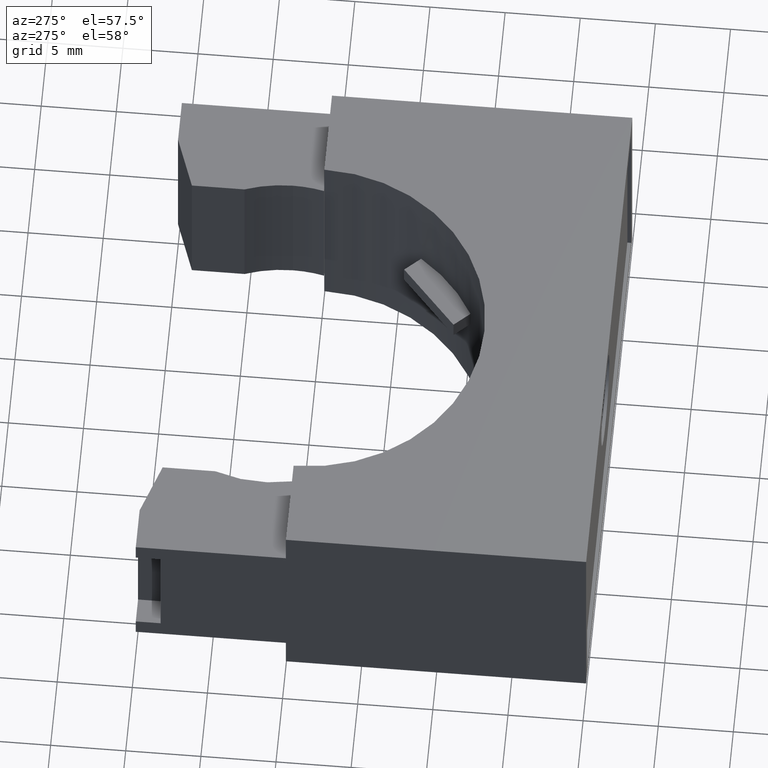
[diagram: clean part render]
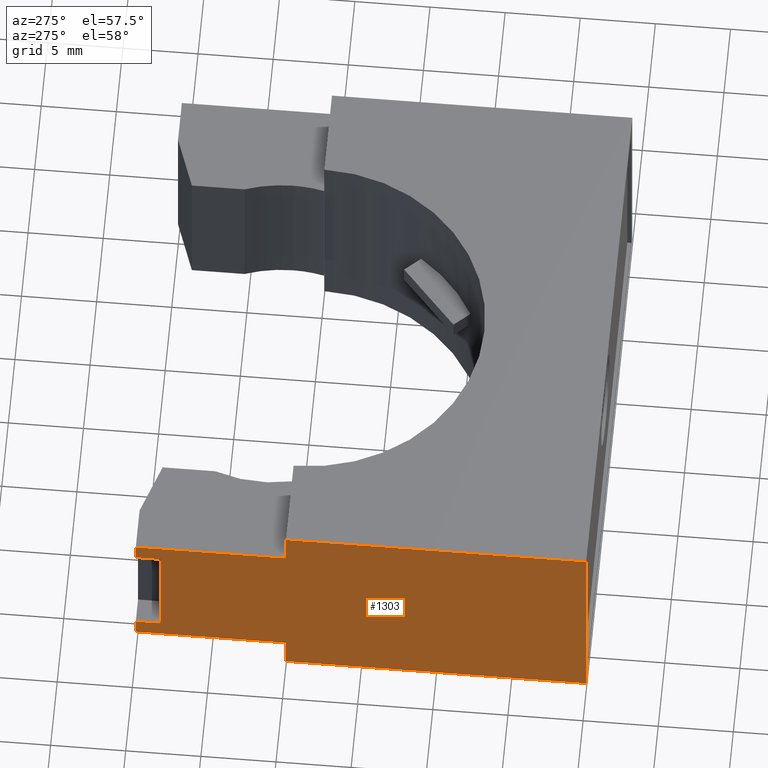
[diagram: same view with one face highlighted and labeled with its STEP entity id]
A machine part, auxiliary view. The second image highlights one B-rep face of the part: STEP entity #1303.
In plain terms, the highlighted planar face has unit normal (1, 0, -0).
Its self-contained STEP definition (entity closure, byte-faithful):
#26 = DIRECTION ( 'NONE',  ( -0.0000000000000000000, -0.0000000000000000000, -1.000000000000000000 ) ) ;
#27 = VECTOR ( 'NONE', #26, 39.37007874015748100 ) ;
#28 = CARTESIAN_POINT ( 'NONE',  ( -0.6899999999999996100, 0.5899999999999993000, 0.5899999999999999700 ) ) ;
#29 = LINE ( 'NONE', #28, #27 ) ;
#31 = DIRECTION ( 'NONE',  ( -3.472688127539318500E-016, 1.000000000000000000, 0.0000000000000000000 ) ) ;
#32 = DIRECTION ( 'NONE',  ( 1.000000000000000000, 3.472688127539318500E-016, -0.0000000000000000000 ) ) ;
#33 = AXIS2_PLACEMENT_3D ( 'NONE', #35, #32, #31 ) ;
#35 = CARTESIAN_POINT ( 'NONE',  ( -0.6899999999999996100, 0.5899999999999993000, 0.5899999999999999700 ) ) ;
#36 = PLANE ( 'NONE',  #33 ) ;
#37 = FACE_OUTER_BOUND ( 'NONE', #1304, .T. ) ;
#58 = CARTESIAN_POINT ( 'NONE',  ( -0.6899999999999996100, 0.5899999999999994100, 0.4502250000000001000 ) ) ;
#124 = CARTESIAN_POINT ( 'NONE',  ( -0.6899999999999996100, 0.1966666666666659300, 0.5899999999999999700 ) ) ;
#125 = DIRECTION ( 'NONE',  ( 3.472688127539318500E-016, -1.000000000000000000, 0.0000000000000000000 ) ) ;
#126 = VECTOR ( 'NONE', #125, 39.37007874015748100 ) ;
#127 = CARTESIAN_POINT ( 'NONE',  ( -0.6899999999999996100, 0.5899999999999993000, 0.5899999999999999700 ) ) ;
#128 = LINE ( 'NONE', #127, #126 ) ;
#129 = CARTESIAN_POINT ( 'NONE',  ( -0.6899999999999991700, -0.5900000000000005200, 0.5899999999999999700 ) ) ;
#130 = DIRECTION ( 'NONE',  ( -0.0000000000000000000, -0.0000000000000000000, -1.000000000000000000 ) ) ;
#131 = VECTOR ( 'NONE', #130, 39.37007874015748100 ) ;
#132 = CARTESIAN_POINT ( 'NONE',  ( -0.6899999999999991700, -0.5900000000000005200, 0.5899999999999999700 ) ) ;
#133 = LINE ( 'NONE', #132, #131 ) ;
#134 = DIRECTION ( 'NONE',  ( 3.472688127539318500E-016, -1.000000000000000000, 0.0000000000000000000 ) ) ;
#135 = VECTOR ( 'NONE', #134, 39.37007874015748100 ) ;
#136 = CARTESIAN_POINT ( 'NONE',  ( -0.6899999999999996100, 0.5899999999999993000, 0.0000000000000000000 ) ) ;
#137 = LINE ( 'NONE', #136, #135 ) ;
#155 = CARTESIAN_POINT ( 'NONE',  ( -0.6899999999999996100, 0.5899999999999994100, 0.5004500000000002800 ) ) ;
#156 = DIRECTION ( 'NONE',  ( -0.0000000000000000000, -0.0000000000000000000, -1.000000000000000000 ) ) ;
#157 = VECTOR ( 'NONE', #156, 39.37007874015748100 ) ;
#158 = CARTESIAN_POINT ( 'NONE',  ( -0.6899999999999996100, 0.5899999999999993000, 0.5899999999999999700 ) ) ;
#161 = DIRECTION ( 'NONE',  ( 0.0000000000000000000, 3.813299823651970100E-016, -1.000000000000000000 ) ) ;
#162 = VECTOR ( 'NONE', #161, 39.37007874015748100 ) ;
#163 = CARTESIAN_POINT ( 'NONE',  ( -0.6899999999999996100, 0.1966666666666659300, 0.5899999999999999700 ) ) ;
#164 = LINE ( 'NONE', #163, #162 ) ;
#165 = CARTESIAN_POINT ( 'NONE',  ( -0.6899999999999991700, -0.5900000000000005200, 0.0000000000000000000 ) ) ;
#166 = CARTESIAN_POINT ( 'NONE',  ( -0.6899999999999996100, 0.1966666666666660200, 0.0000000000000000000 ) ) ;
#167 = DIRECTION ( 'NONE',  ( -0.0000000000000000000, -0.0000000000000000000, -1.000000000000000000 ) ) ;
#168 = VECTOR ( 'NONE', #167, 39.37007874015748100 ) ;
#169 = CARTESIAN_POINT ( 'NONE',  ( -0.6899999999999996100, 0.1966666666666660200, 0.0000000000000000000 ) ) ;
#170 = LINE ( 'NONE', #169, #168 ) ;
#171 = CARTESIAN_POINT ( 'NONE',  ( -0.6899999999999996100, 0.1966666666666660200, 0.08954999999999972700 ) ) ;
#172 = DIRECTION ( 'NONE',  ( 0.0000000000000000000, -1.000000000000000000, -1.302258047827244000E-016 ) ) ;
#173 = VECTOR ( 'NONE', #172, 39.37007874015748100 ) ;
#174 = CARTESIAN_POINT ( 'NONE',  ( -0.6899999999999996100, 0.5899999999999994100, 0.08954999999999978300 ) ) ;
#175 = LINE ( 'NONE', #174, #173 ) ;
#176 = DIRECTION ( 'NONE',  ( -0.0000000000000000000, 1.000000000000000000, -0.0000000000000000000 ) ) ;
#177 = VECTOR ( 'NONE', #176, 39.37007874015748100 ) ;
#178 = CARTESIAN_POINT ( 'NONE',  ( -0.6899999999999996100, 0.5249999999999993600, 0.1397750000000000700 ) ) ;
#179 = LINE ( 'NONE', #178, #177 ) ;
#180 = CARTESIAN_POINT ( 'NONE',  ( -0.6899999999999996100, 0.5249999999999993600, 0.4502250000000001000 ) ) ;
#181 = CARTESIAN_POINT ( 'NONE',  ( -0.6899999999999996100, 0.5249999999999993600, 0.1397750000000000900 ) ) ;
#182 = DIRECTION ( 'NONE',  ( 0.0000000000000000000, 0.0000000000000000000, 1.000000000000000000 ) ) ;
#183 = VECTOR ( 'NONE', #182, 39.37007874015748100 ) ;
#184 = CARTESIAN_POINT ( 'NONE',  ( -0.6899999999999996100, 0.5249999999999993600, 0.1397750000000000700 ) ) ;
#185 = LINE ( 'NONE', #184, #183 ) ;
#309 = DIRECTION ( 'NONE',  ( -0.0000000000000000000, 1.000000000000000000, -0.0000000000000000000 ) ) ;
#310 = VECTOR ( 'NONE', #309, 39.37007874015748100 ) ;
#311 = CARTESIAN_POINT ( 'NONE',  ( -0.6899999999999996100, 0.5249999999999993600, 0.4502250000000001000 ) ) ;
#312 = LINE ( 'NONE', #311, #310 ) ;
#313 = DIRECTION ( 'NONE',  ( -0.0000000000000000000, 1.000000000000000000, 1.736344063769658300E-016 ) ) ;
#314 = VECTOR ( 'NONE', #313, 39.37007874015748100 ) ;
#315 = CARTESIAN_POINT ( 'NONE',  ( -0.6899999999999996100, 0.5899999999999994100, 0.5004500000000002800 ) ) ;
#316 = LINE ( 'NONE', #315, #314 ) ;
#317 = CARTESIAN_POINT ( 'NONE',  ( -0.6899999999999996100, 0.1966666666666659600, 0.5004500000000002800 ) ) ;
#648 = LINE ( 'NONE', #158, #157 ) ;
#723 = CARTESIAN_POINT ( 'NONE',  ( -0.6899999999999996100, 0.5899999999999994100, 0.08954999999999978300 ) ) ;
#724 = CARTESIAN_POINT ( 'NONE',  ( -0.6899999999999996100, 0.5899999999999994100, 0.1397750000000000700 ) ) ;
#1154 = VERTEX_POINT ( 'NONE', #724 ) ;
#1155 = VERTEX_POINT ( 'NONE', #723 ) ;
#1198 = EDGE_CURVE ( 'NONE', #1199, #1290, #648, .T. ) ;
#1199 = VERTEX_POINT ( 'NONE', #155 ) ;
#1222 = EDGE_CURVE ( 'NONE', #1154, #1155, #29, .T. ) ;
#1278 = ORIENTED_EDGE ( 'NONE', *, *, #1279, .T. ) ;
#1279 = EDGE_CURVE ( 'NONE', #1335, #1336, #137, .T. ) ;
#1280 = ORIENTED_EDGE ( 'NONE', *, *, #1281, .F. ) ;
#1281 = EDGE_CURVE ( 'NONE', #1282, #1336, #133, .T. ) ;
#1282 = VERTEX_POINT ( 'NONE', #129 ) ;
#1283 = ORIENTED_EDGE ( 'NONE', *, *, #1284, .F. ) ;
#1284 = EDGE_CURVE ( 'NONE', #1285, #1282, #128, .T. ) ;
#1285 = VERTEX_POINT ( 'NONE', #124 ) ;
#1286 = ORIENTED_EDGE ( 'NONE', *, *, #1337, .T. ) ;
#1290 = VERTEX_POINT ( 'NONE', #58 ) ;
#1303 = ADVANCED_FACE ( 'NONE', ( #37 ), #36, .F. ) ;
#1304 = EDGE_LOOP ( 'NONE', ( #1323, #1327, #1329, #1330, #1333, #1278, #1280, #1283, #1286, #1339, #1341, #1342 ) ) ;
#1323 = ORIENTED_EDGE ( 'NONE', *, *, #1324, .F. ) ;
#1324 = EDGE_CURVE ( 'NONE', #1325, #1326, #185, .T. ) ;
#1325 = VERTEX_POINT ( 'NONE', #181 ) ;
#1326 = VERTEX_POINT ( 'NONE', #180 ) ;
#1327 = ORIENTED_EDGE ( 'NONE', *, *, #1328, .T. ) ;
#1328 = EDGE_CURVE ( 'NONE', #1325, #1154, #179, .T. ) ;
#1329 = ORIENTED_EDGE ( 'NONE', *, *, #1222, .T. ) ;
#1330 = ORIENTED_EDGE ( 'NONE', *, *, #1331, .T. ) ;
#1331 = EDGE_CURVE ( 'NONE', #1155, #1332, #175, .T. ) ;
#1332 = VERTEX_POINT ( 'NONE', #171 ) ;
#1333 = ORIENTED_EDGE ( 'NONE', *, *, #1334, .T. ) ;
#1334 = EDGE_CURVE ( 'NONE', #1332, #1335, #170, .T. ) ;
#1335 = VERTEX_POINT ( 'NONE', #166 ) ;
#1336 = VERTEX_POINT ( 'NONE', #165 ) ;
#1337 = EDGE_CURVE ( 'NONE', #1285, #1338, #164, .T. ) ;
#1338 = VERTEX_POINT ( 'NONE', #317 ) ;
#1339 = ORIENTED_EDGE ( 'NONE', *, *, #1340, .T. ) ;
#1340 = EDGE_CURVE ( 'NONE', #1338, #1199, #316, .T. ) ;
#1341 = ORIENTED_EDGE ( 'NONE', *, *, #1198, .T. ) ;
#1342 = ORIENTED_EDGE ( 'NONE', *, *, #1343, .F. ) ;
#1343 = EDGE_CURVE ( 'NONE', #1326, #1290, #312, .T. ) ;